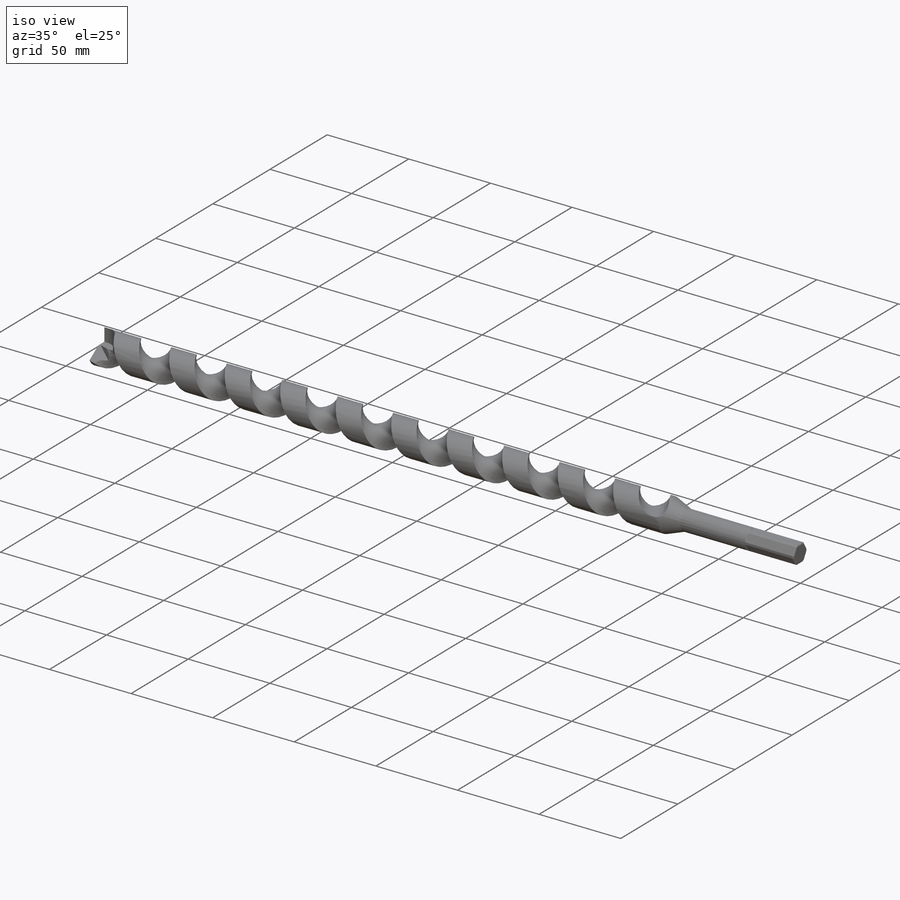
[diagram: iso view]
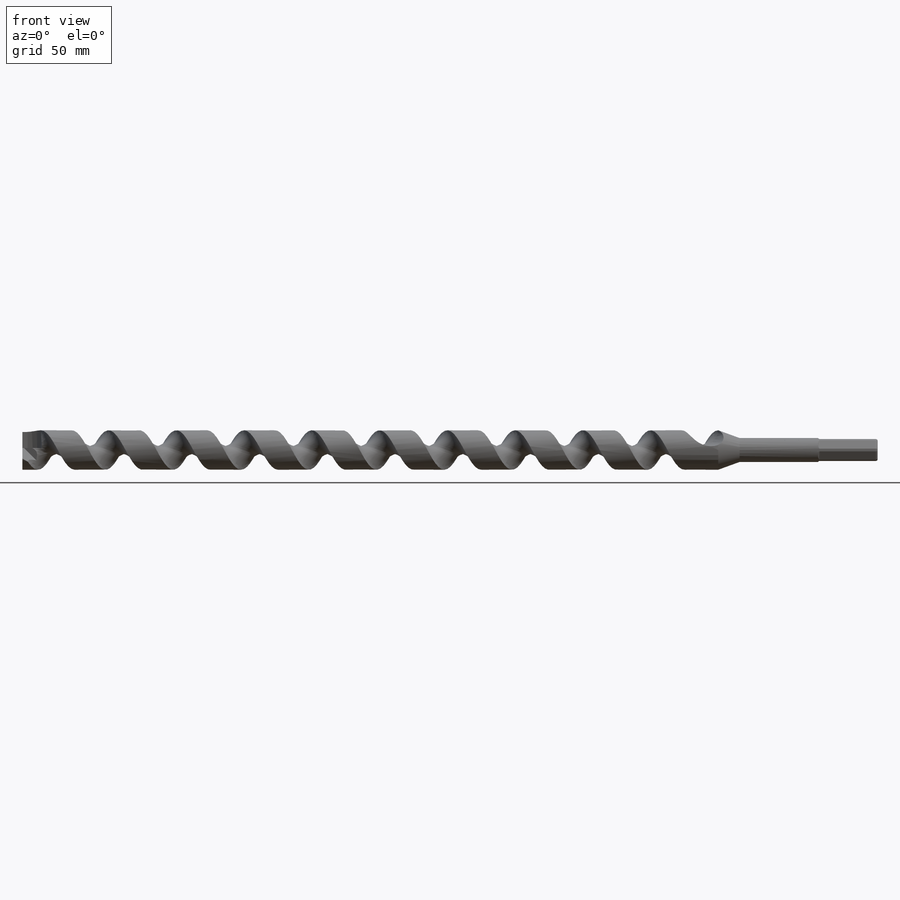
[diagram: front view]
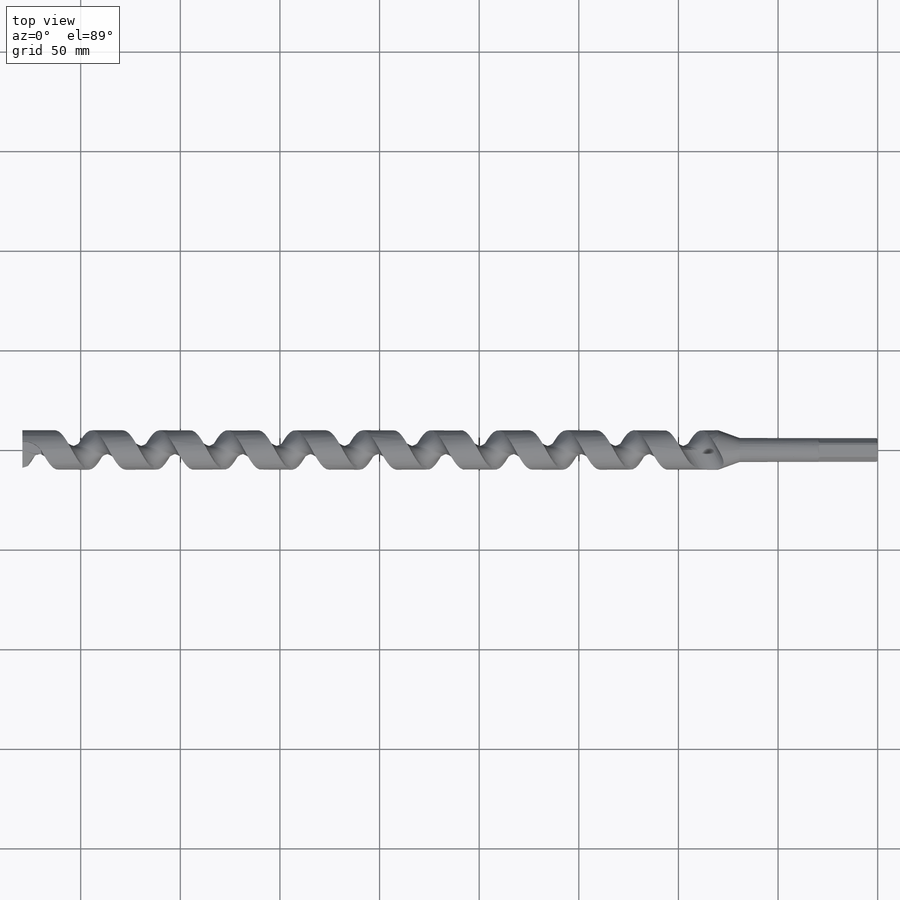
[diagram: top view]
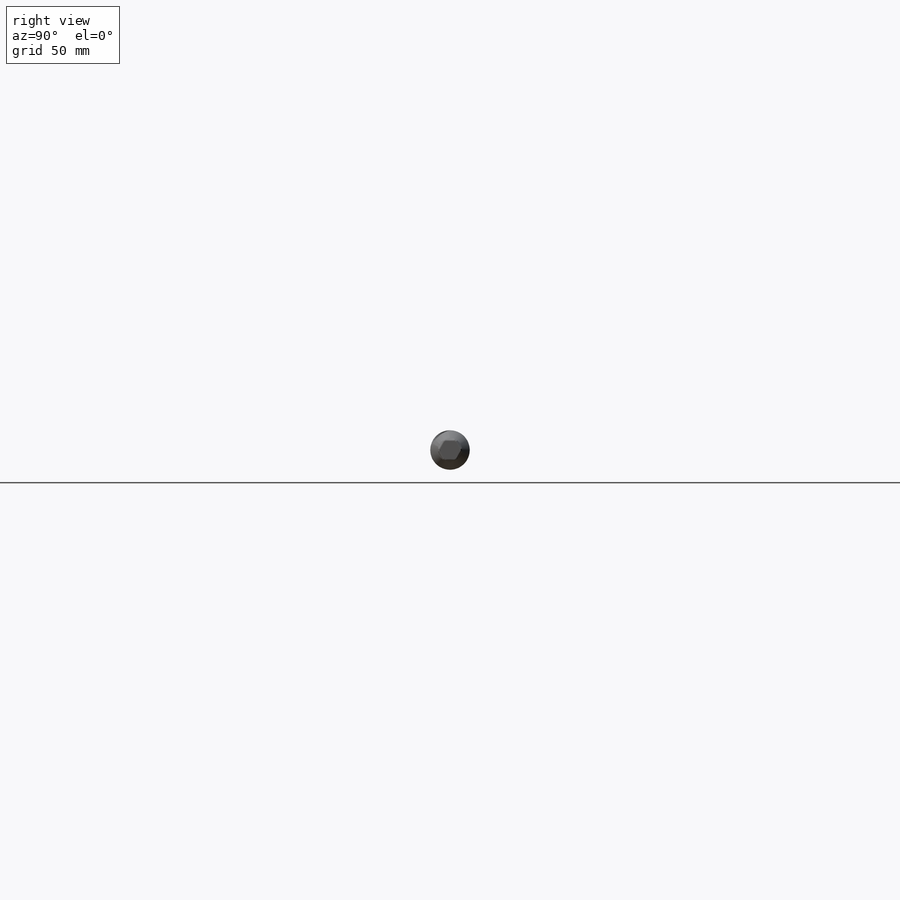
[diagram: right view]
SOLIDWORKS PART (.sldprt)
format: sldprt  version: not decoded by parser v0  size: 594,944 bytes
history: native  units: mm
features: sketch x13, plane x8, revolve x4, cut_extrude x3, sweep x2, material x1, pattern_circular x1, fillet x1, helix x1 + 1 further entry (+13 scaffold rows collapsed)
feature tree (48):
  scaffold x13  (default folders/planes/origin — collapsed)
  material  "Acciaio in lega fuso"
  plane  "Piano frontale"
  plane  "Piano superiore"
  plane  "Piano destro"
  sketch  "Schizzo1"  dims[c1.D1=19.8mm c1.D2=360.0mm c1.D3=~3.888461mm c2.D3=45.0deg c2.D4=80.0mm c2.D5=15.0mm c3.D3=~3.033133mm c4.D3=45.0deg c4.D5=449.0deg c5.D3=~348.307129mm c6.D3=90.0deg c6.D4=~79.845336mm c7.D4=1.0deg c7.D5=69.0mm c7.D6=2.0mm c7.D3=6.0mm c8.D4=1.0mm c8.D6=2.0mm c8.D7=40.0mm c8.D3=12.0mm c8.D8=80.0mm c9.D4=~11.670904mm c10.D4=~160.47827deg c11.D4=~11.670904mm c12.D4=~19.52173deg c13.D4=~11.670904mm c14.D4=20.0deg]
  revolve  "Rivoluzione1"  Angle=360deg
  sketch  "Schizzo2"  dims[D1=0.5mm D2=5.0mm D3=30.0mm D4=30.0mm]
  cut_extrude  "Taglio-Estrusione1"  Depth=10mm
  pattern_circular  "RipetizioneCircolare1"  Count=6 Angle=360deg
  fillet  "Raccordo2"  Radius=1mm
  plane  "Piano2"
  sketch  "Schizzo5"
  plane  "Piano3"
  sketch  "Schizzo6"
  helix  "Elica/Spirale2"  Pitch=340mm
  sketch  "Schizzo8"  dims[D1=16.0mm]
  plane  "Piano5"
  sketch  "Schizzo9"
  plane  "Piano6"
  "Superficie-Estrusione2"
  sketch  "Schizzo19"
  sweep  "Taglia-Sweep16"
  sketch  "Schizzo17"  dims[D1=18.6mm D2=35.0mm]
  revolve  "Rivoluzione2"  Angle=80deg
  sketch  "Schizzo18"  dims[D1=35.0mm]
  revolve  "Rivoluzione3"  Angle=360deg
  sketch  "Schizzo20"  dims[D1=14.0mm]
  revolve  "Rivoluzione5"  Angle=193deg
  sketch  "Schizzo12"  dims[D1=0.0mm]
  sweep  "Taglia-Sweep17"
  plane  "Piano8"
  sketch  "Schizzo22"
  cut_extrude  "Taglio-Estrusione2"  Depth=22mm
  sketch  "Schizzo24"
  cut_extrude  "Taglio-Estrusione3"  Depth=1mm
decode coverage: 17 of 25 modeling features carry decoded parameters; 1 rows unclassified (native names shown)
note: ~ marks probable driven/reference dimensions
note: suppression state not decoded; provenance and decode notes live in map.json
